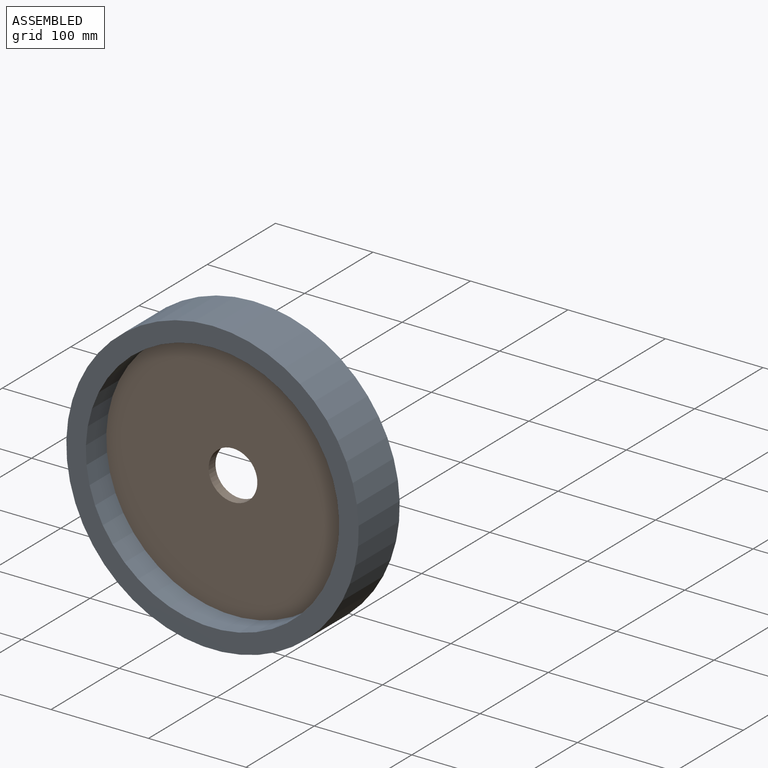
[diagram: assembled view]
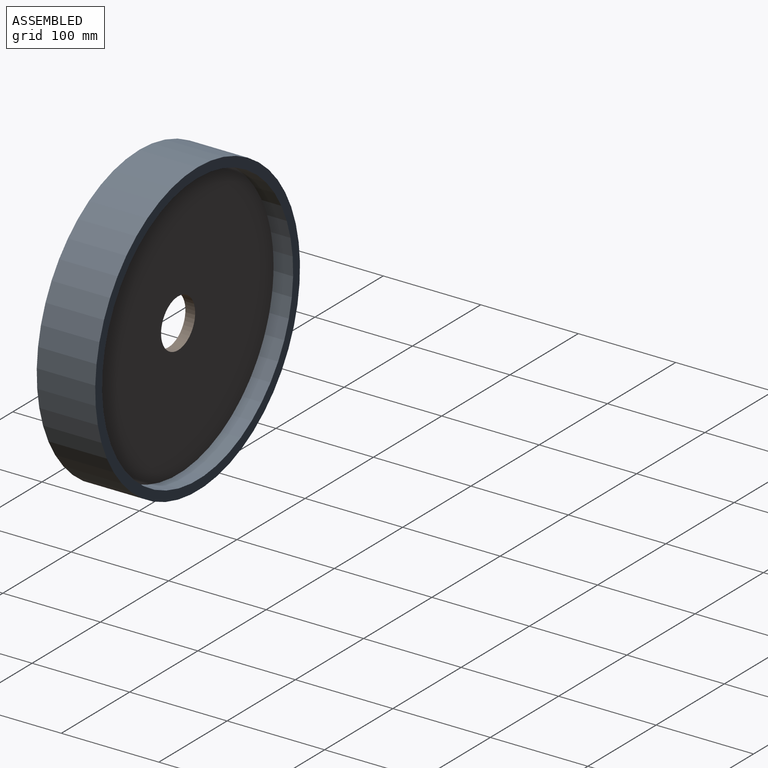
[diagram: assembled view, second angle]
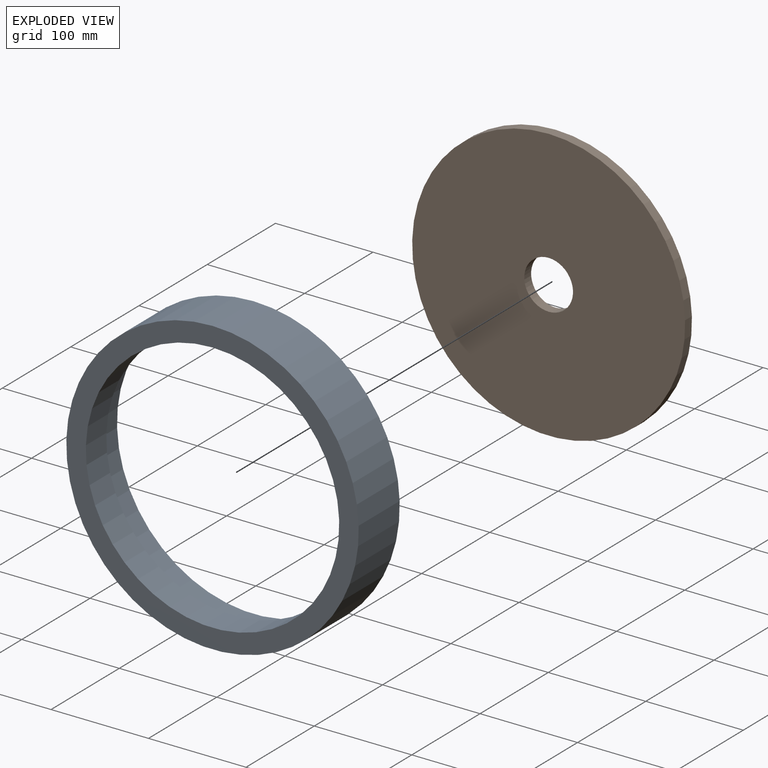
[diagram: exploded view]
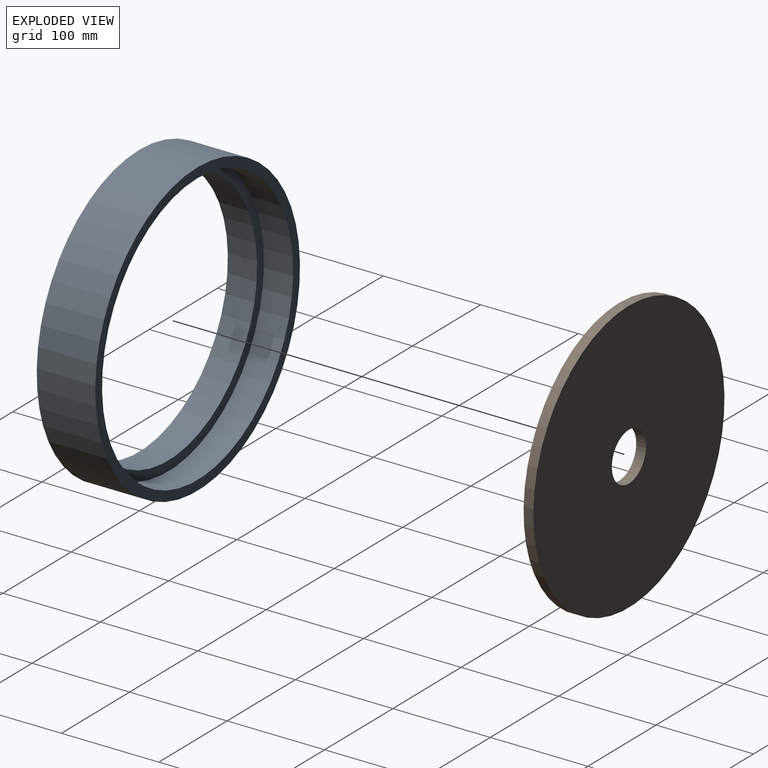
[diagram: exploded view, second angle]
ASSEMBLY  parts=2 mates=2
PART A: 6 faces, bbox 300x60x300 mm
  f0: plane 300x300mm, normal (0,-1,0), area 17592.9mm2, adj f1,f5
  f1: cylinder r=130mm len=260mm, axis (0,1,0), area 24504.4mm2, adj f0,f2
  f2: plane 280x280mm, normal (0,1,0), area 8482.3mm2, adj f1,f3
  f3: cylinder r=140mm len=280mm, axis (0,1,0), area 26389.4mm2, adj f2,f4
  f4: plane 300x300mm, normal (0,1,0), area 9110.6mm2, adj f3,f5
  f5: cylinder r=150mm len=300mm, axis (0,1,0), area 56548.7mm2, adj f0,f4
PART B: 4 faces, bbox 280x10x280 mm
  f0: plane 280x280mm, normal (0,1,0), area 59611.7mm2, adj f2,f3
  f1: plane 280x280mm, normal (0,-1,0), area 59611.7mm2, adj f2,f3
  f2: cylinder r=140mm len=280mm, axis (0,-1,0), area 8796.5mm2, adj f0,f1
  f3: cylinder r=25mm len=50mm, axis (0,-1,0), area 1570.8mm2, adj f0,f1
PLACE A t=(-249.78,64.87,-24.03)mm
PLACE B t=(-249.78,94.87,-24.03)mm
MATE fastened B.f2 <-> A.f1  axis (0,-1,0) through (-249.78,94.87,-24.03)mm
MATE slider A.f1 <-> B.f2  axis (0,1,0) through (-249.78,79.87,-24.03)mm
